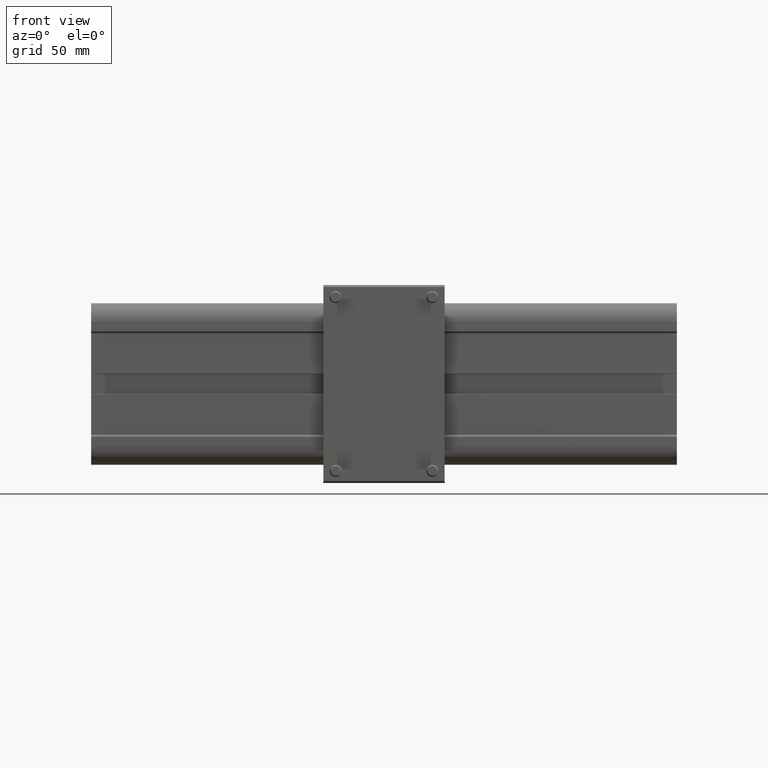
[diagram: clean part render]
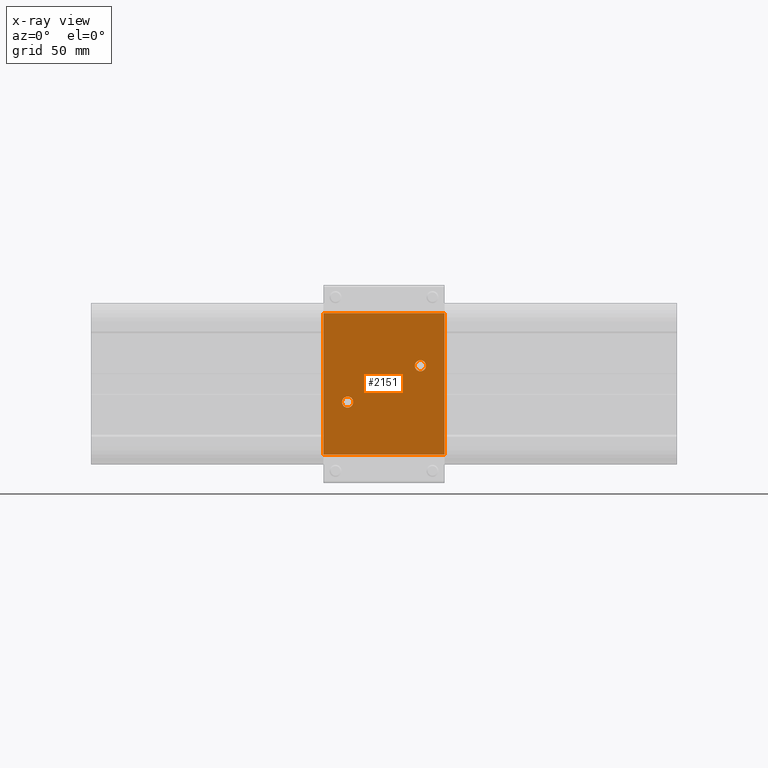
[diagram: x-ray — body ghosted, one internal face saturated and labeled with its STEP entity id]
A machine part, front view, then the same camera in x-ray: the body is ghosted and one INTERNAL B-rep face — a face not visible from any outside direction — is saturated and labeled: STEP entity #2151.
In plain terms, the highlighted planar face has unit normal (0, 1, 0).
Its self-contained STEP definition (entity closure, byte-faithful):
#2151 = ADVANCED_FACE( '', ( #4475, #4476, #4477 ), #4478, .F. );
#4475 = FACE_BOUND( '', #6858, .T. );
#4476 = FACE_BOUND( '', #6859, .T. );
#4477 = FACE_OUTER_BOUND( '', #6860, .T. );
#4478 = PLANE( '', #6861 );
#6858 = EDGE_LOOP( '', ( #12470 ) );
#6859 = EDGE_LOOP( '', ( #12471 ) );
#6860 = EDGE_LOOP( '', ( #12472, #12473, #12474, #12475 ) );
#6861 = AXIS2_PLACEMENT_3D( '', #12476, #12477, #12478 );
#12470 = ORIENTED_EDGE( '', *, *, #13697, .F. );
#12471 = ORIENTED_EDGE( '', *, *, #15317, .F. );
#12472 = ORIENTED_EDGE( '', *, *, #13770, .T. );
#12473 = ORIENTED_EDGE( '', *, *, #14688, .F. );
#12474 = ORIENTED_EDGE( '', *, *, #14908, .F. );
#12475 = ORIENTED_EDGE( '', *, *, #15377, .T. );
#12476 = CARTESIAN_POINT( '', ( 30.0000000000000, 0.000000000000000, 35.0000000000000 ) );
#12477 = DIRECTION( '', ( -0.000000000000000, 1.00000000000000, 0.000000000000000 ) );
#12478 = DIRECTION( '', ( 0.000000000000000, -0.000000000000000, 1.00000000000000 ) );
#13697 = EDGE_CURVE( '', #16376, #16376, #16377, .T. );
#13770 = EDGE_CURVE( '', #16504, #16502, #16505, .T. );
#14688 = EDGE_CURVE( '', #17909, #16502, #17911, .T. );
#14908 = EDGE_CURVE( '', #18236, #17909, #18238, .T. );
#15317 = EDGE_CURVE( '', #18741, #18741, #18742, .T. );
#15377 = EDGE_CURVE( '', #18236, #16504, #18809, .T. );
#16376 = VERTEX_POINT( '', #20153 );
#16377 = CIRCLE( '', #20154, 2.75000000000000 );
#16502 = VERTEX_POINT( '', #20325 );
#16504 = VERTEX_POINT( '', #20328 );
#16505 = LINE( '', #20329, #20330 );
#17909 = VERTEX_POINT( '', #22284 );
#17911 = LINE( '', #22287, #22288 );
#18236 = VERTEX_POINT( '', #22737 );
#18238 = LINE( '', #22740, #22741 );
#18741 = VERTEX_POINT( '', #23452 );
#18742 = CIRCLE( '', #23453, 2.75000000000000 );
#18809 = LINE( '', #23541, #23542 );
#20153 = CARTESIAN_POINT( '', ( -18.0000000000000, 0.000000000000000, -11.7500000000000 ) );
#20154 = AXIS2_PLACEMENT_3D( '', #24261, #24262, #24263 );
#20325 = CARTESIAN_POINT( '', ( -30.0000000000000, 0.000000000000000, -35.0000000000000 ) );
#20328 = CARTESIAN_POINT( '', ( -30.0000000000000, 0.000000000000000, 35.0000000000000 ) );
#20329 = CARTESIAN_POINT( '', ( -30.0000000000000, 0.000000000000000, 35.0000000000000 ) );
#20330 = VECTOR( '', #24350, 1000.00000000000 );
#22284 = CARTESIAN_POINT( '', ( 30.0000000000000, 0.000000000000000, -35.0000000000000 ) );
#22287 = CARTESIAN_POINT( '', ( 30.0000000000000, 0.000000000000000, -35.0000000000000 ) );
#22288 = VECTOR( '', #25373, 1000.00000000000 );
#22737 = CARTESIAN_POINT( '', ( 30.0000000000000, 0.000000000000000, 35.0000000000000 ) );
#22740 = CARTESIAN_POINT( '', ( 30.0000000000000, 0.000000000000000, 35.0000000000000 ) );
#22741 = VECTOR( '', #25661, 1000.00000000000 );
#23452 = CARTESIAN_POINT( '', ( 18.0000000000000, 0.000000000000000, 6.25000000000000 ) );
#23453 = AXIS2_PLACEMENT_3D( '', #26023, #26024, #26025 );
#23541 = CARTESIAN_POINT( '', ( 30.0000000000000, 0.000000000000000, 35.0000000000000 ) );
#23542 = VECTOR( '', #26065, 1000.00000000000 );
#24261 = CARTESIAN_POINT( '', ( -18.0000000000000, 0.000000000000000, -9.00000000000000 ) );
#24262 = DIRECTION( '', ( 0.000000000000000, -1.00000000000000, -0.000000000000000 ) );
#24263 = DIRECTION( '', ( 0.000000000000000, 0.000000000000000, -1.00000000000000 ) );
#24350 = DIRECTION( '', ( 0.000000000000000, 0.000000000000000, -1.00000000000000 ) );
#25373 = DIRECTION( '', ( -1.00000000000000, -0.000000000000000, -0.000000000000000 ) );
#25661 = DIRECTION( '', ( 0.000000000000000, 0.000000000000000, -1.00000000000000 ) );
#26023 = CARTESIAN_POINT( '', ( 18.0000000000000, 0.000000000000000, 9.00000000000000 ) );
#26024 = DIRECTION( '', ( 0.000000000000000, -1.00000000000000, -0.000000000000000 ) );
#26025 = DIRECTION( '', ( 0.000000000000000, 0.000000000000000, -1.00000000000000 ) );
#26065 = DIRECTION( '', ( -1.00000000000000, -0.000000000000000, -0.000000000000000 ) );